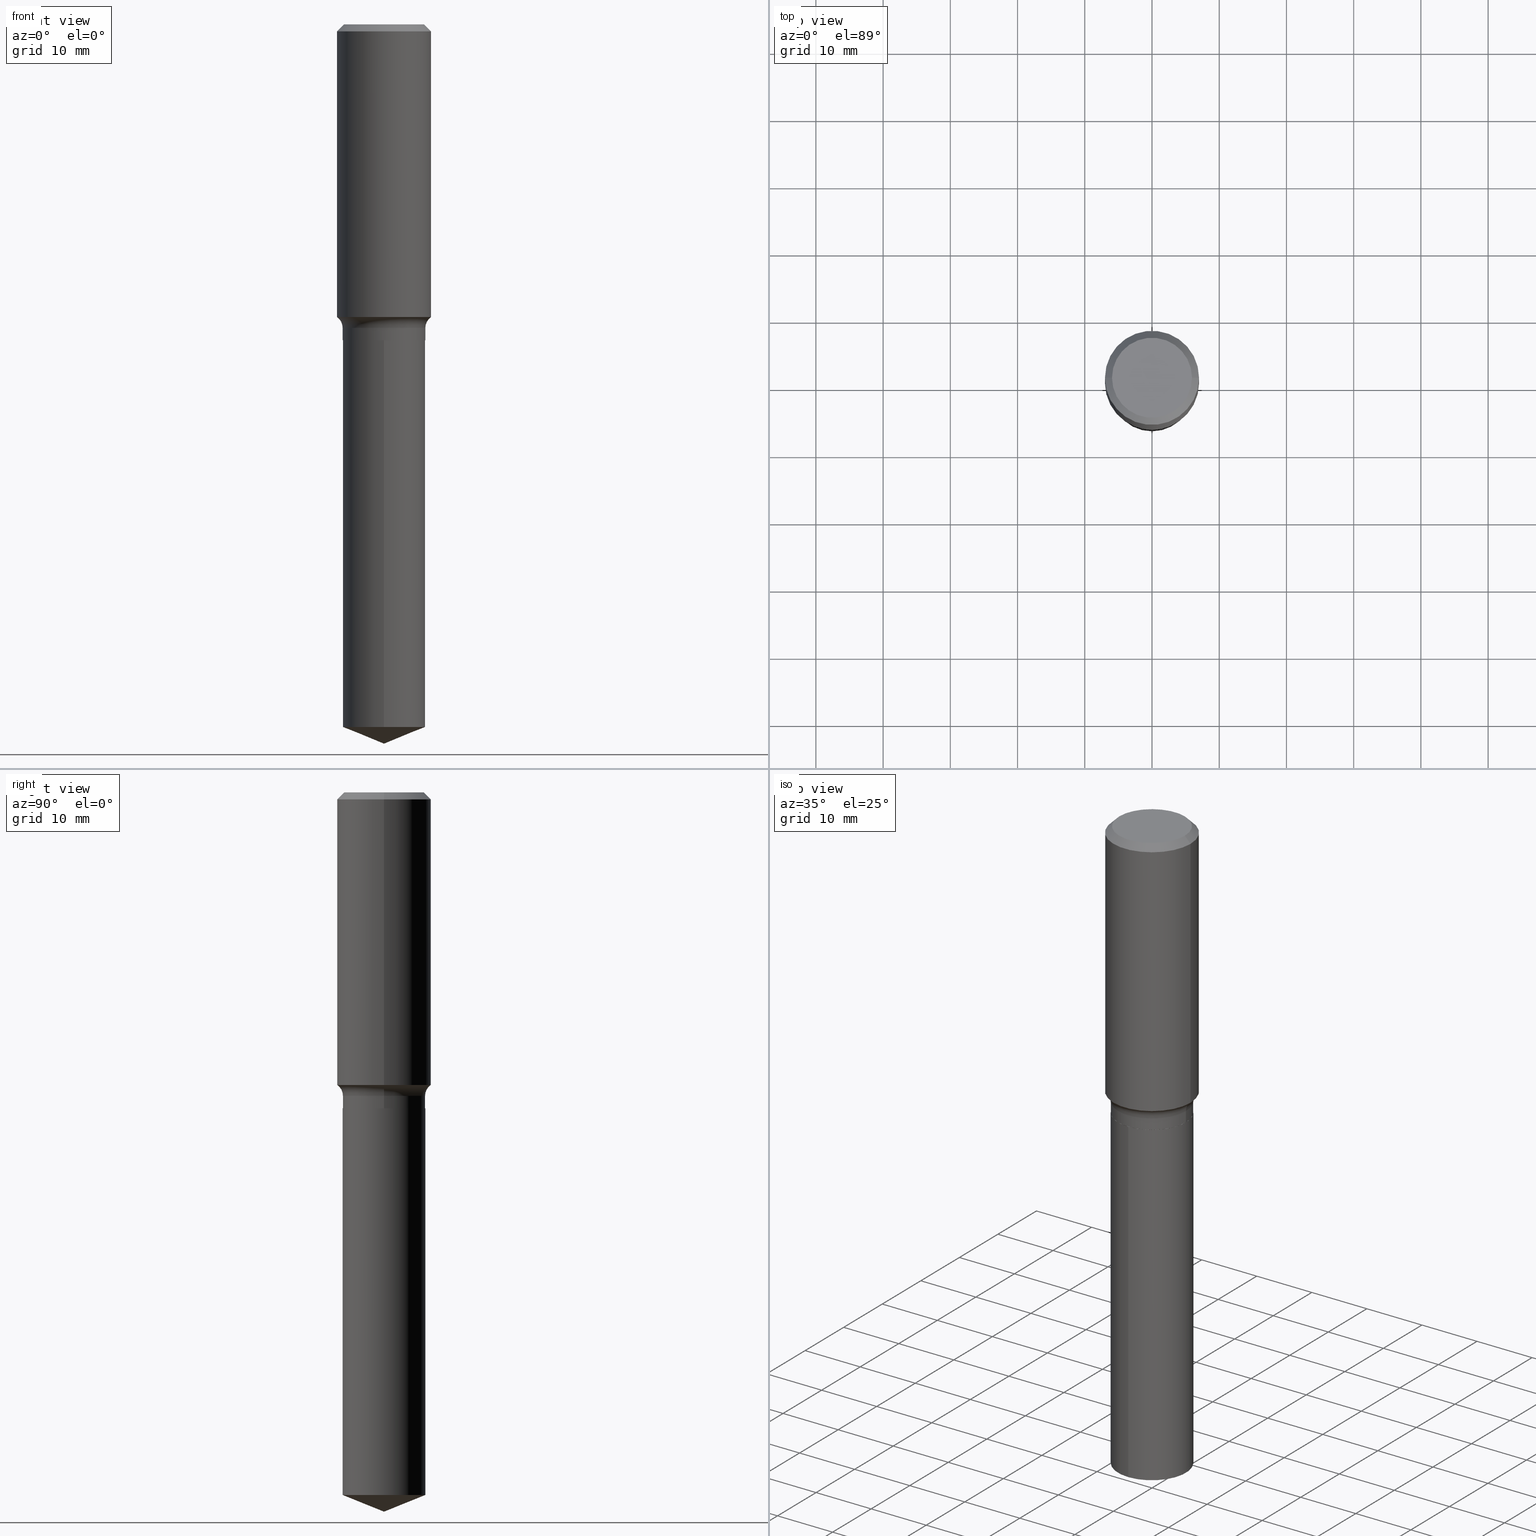
[diagram: canonical four-view strip — front | top / right | iso, engineering-drawing reading convention]
A machine part, canonical four-view strip (front | top / right | iso — engineering-drawing reading convention). The complete STEP part file that produces these views, byte-faithful:
ISO-10303-21;
HEADER;
FILE_DESCRIPTION (( 'STEP AP203' ),
    '1' );
FILE_NAME ('56827.STEP',
    '2024-04-19T14:11:59',
    ( '' ),
    ( '' ),
    'SwSTEP 2.0',
    'SolidWorks 2023',
    '' );
FILE_SCHEMA (( 'CONFIG_CONTROL_DESIGN' ));
ENDSEC;

DATA;
#1 = CC_DESIGN_PERSON_AND_ORGANIZATION_ASSIGNMENT ( #440, #118, ( #254 ) ) ;
#2 = EDGE_CURVE ( 'NONE', #32, #242, #47, .T. ) ;
#3 = TOROIDAL_SURFACE ( 'NONE', #399, 0.3201999999999999291, 0.07799999999999993050 ) ;
#4 = DIMENSIONAL_EXPONENTS ( 1.000000000000000000, 0.000000000000000000, 0.000000000000000000, 0.000000000000000000, 0.000000000000000000, 0.000000000000000000, 0.000000000000000000 ) ;
#5 = EDGE_CURVE ( 'NONE', #485, #172, #347, .T. ) ;
#6 = CARTESIAN_POINT ( 'NONE',  ( 0.2756000000000001782, -7.907887728136033318E-15, -1.713709063141723332 ) ) ;
#7 = ORIENTED_EDGE ( 'NONE', *, *, #42, .T. ) ;
#8 = CLOSED_SHELL ( 'NONE', ( #190, #16, #457, #430, #71, #266, #301, #244, #167, #152, #209, #368 ) ) ;
#9 = ORIENTED_EDGE ( 'NONE', *, *, #150, .T. ) ;
#10 = CIRCLE ( 'NONE', #345, 0.2756000000000001782 ) ;
#11 = CC_DESIGN_APPROVAL ( #339, ( #226 ) ) ;
#12 = APPROVAL_DATE_TIME ( #397, #477 ) ;
#13 = ORIENTED_EDGE ( 'NONE', *, *, #15, .T. ) ;
#14 = DIRECTION ( 'NONE',  ( -2.445479514057623274E-29, 3.491466004560290354E-15, 1.000000000000000000 ) ) ;
#15 = EDGE_CURVE ( 'NONE', #172, #242, #481, .T. ) ;
#16 = ADVANCED_FACE ( 'NONE', ( #241 ), #19, .T. ) ;
#17 = DIRECTION ( 'NONE',  ( -2.445468806185136597E-29, 3.491481338843145583E-15, 1.000000000000000000 ) ) ;
#18 = DIRECTION ( 'NONE',  ( 1.000000000000000000, -6.982962677686274599E-15, 0.000000000000000000 ) ) ;
#19 = CONICAL_SURFACE ( 'NONE', #272, 0.2756000000000000116, 0.7853981633974452814 ) ;
#20 = EDGE_LOOP ( 'NONE', ( #286, #284, #102, #194 ) ) ;
#21 = ORGANIZATION ( 'UNSPECIFIED', 'UNSPECIFIED', '' ) ;
#22 = LOCAL_TIME ( 10, 11, 59.00000000000000000, #200 ) ;
#23 = LENGTH_MEASURE_WITH_UNIT ( LENGTH_MEASURE( 0.02539999999999999897 ), #53 );
#24 = CARTESIAN_POINT ( 'NONE',  ( 4.525095478964978515E-29, -6.460637069395359943E-15, -1.850400000000000933 ) ) ;
#25 = ORIENTED_EDGE ( 'NONE', *, *, #229, .F. ) ;
#26 = EDGE_CURVE ( 'NONE', #99, #455, #280, .T. ) ;
#27 = DIRECTION ( 'NONE',  ( 6.588037525764804701E-15, 0.9271838545667907550, 0.3746065934159037991 ) ) ;
#28 = VERTEX_POINT ( 'NONE', #238 ) ;
#29 = CARTESIAN_POINT ( 'NONE',  ( -0.2756000000000000116, 1.780166675422558965E-15, -0.04134000000000025155 ) ) ;
#30 = DIRECTION ( 'NONE',  ( -2.445468806185136597E-29, 3.491481338843145583E-15, 1.000000000000000000 ) ) ;
#31 = APPROVAL_ROLE ( '' ) ;
#32 = VERTEX_POINT ( 'NONE', #6 ) ;
#33 = AXIS2_PLACEMENT_3D ( 'NONE', #316, #227, #410 ) ;
#34 = DIRECTION ( 'NONE',  ( -2.445468806185136877E-29, 3.491481338843145188E-15, 1.000000000000000000 ) ) ;
#35 = CARTESIAN_POINT ( 'NONE',  ( 0.000000000000000000, 0.000000000000000000, 0.000000000000000000 ) ) ;
#36 = FACE_OUTER_BOUND ( 'NONE', #20, .T. ) ;
#37 = FACE_OUTER_BOUND ( 'NONE', #203, .T. ) ;
#38 = CC_DESIGN_DATE_AND_TIME_ASSIGNMENT ( #472, #129, ( #226 ) ) ;
#39 = CIRCLE ( 'NONE', #56, 0.07799999999999995826 ) ;
#40 = AXIS2_PLACEMENT_3D ( 'NONE', #41, #454, #334 ) ;
#41 = CARTESIAN_POINT ( 'NONE',  ( -1.002970424325033577E-46, 1.431975951230896486E-32, 4.101342130344485961E-18 ) ) ;
#42 = EDGE_CURVE ( 'NONE', #206, #348, #432, .T. ) ;
#43 = AXIS2_PLACEMENT_3D ( 'NONE', #401, #484, #487 ) ;
#44 = AXIS2_PLACEMENT_3D ( 'NONE', #216, #30, #212 ) ;
#45 = ORIENTED_EDGE ( 'NONE', *, *, #352, .F. ) ;
#46 = DIRECTION ( 'NONE',  ( -2.445468806185136597E-29, 3.491481338843145583E-15, 1.000000000000000000 ) ) ;
#47 = LINE ( 'NONE', #464, #115 ) ;
#48 = ORIENTED_EDGE ( 'NONE', *, *, #448, .T. ) ;
#49 = EDGE_CURVE ( 'NONE', #348, #166, #314, .T. ) ;
#50 = CARTESIAN_POINT ( 'NONE',  ( -0.2756000000000001227, 1.958255779754836984E-15, -1.355658510874252567E-29 ) ) ;
#51 = CARTESIAN_POINT ( 'NONE',  ( 1.006250441776211636E-28, -1.436652012914726322E-14, -4.114744848102726671 ) ) ;
#52 = VERTEX_POINT ( 'NONE', #383 ) ;
#53 =( LENGTH_UNIT ( ) NAMED_UNIT ( * ) SI_UNIT ( $, .METRE. ) );
#54 = CARTESIAN_POINT ( 'NONE',  ( 0.2756000000000000116, -2.068842352518111732E-15, -0.04134000000000025155 ) ) ;
#55 = PERSON_AND_ORGANIZATION_ROLE ( 'creator' ) ;
#56 = AXIS2_PLACEMENT_3D ( 'NONE', #342, #84, #18 ) ;
#57 = EDGE_CURVE ( 'NONE', #242, #172, #148, .T. ) ;
#58 = TOROIDAL_SURFACE ( 'NONE', #149, 0.3201999999999999291, 0.07799999999999993050 ) ;
#59 = ORIENTED_EDGE ( 'NONE', *, *, #306, .T. ) ;
#60 = LINE ( 'NONE', #364, #252 ) ;
#61 = ORIENTED_EDGE ( 'NONE', *, *, #159, .T. ) ;
#62 = DIRECTION ( 'NONE',  ( -6.982962677686265922E-15, -1.000000000000000000, 3.383791899666717075E-15 ) ) ;
#63 = CARTESIAN_POINT ( 'NONE',  ( -0.3201999999999999291, -3.931648536157621988E-15, -1.777700000000000502 ) ) ;
#64 = COORDINATED_UNIVERSAL_TIME_OFFSET ( 5, 0, .BEHIND. ) ;
#65 = ORIENTED_EDGE ( 'NONE', *, *, #15, .F. ) ;
#66 = FACE_OUTER_BOUND ( 'NONE', #329, .T. ) ;
#67 = DIRECTION ( 'NONE',  ( -2.438088387897960049E-29, 3.491481338843145188E-15, 1.000000000000000000 ) ) ;
#68 = AXIS2_PLACEMENT_3D ( 'NONE', #408, #333, #439 ) ;
#69 = AXIS2_PLACEMENT_3D ( 'NONE', #367, #70, #395 ) ;
#70 = DIRECTION ( 'NONE',  ( -2.445468806185136597E-29, 3.491481338843145583E-15, 1.000000000000000000 ) ) ;
#71 = ADVANCED_FACE ( 'NONE', ( #156 ), #318, .T. ) ;
#72 = CARTESIAN_POINT ( 'NONE',  ( -0.2756000000000000116, -1.105604746601899798E-15, -0.04134000000000025155 ) ) ;
#73 = ADVANCED_BREP_SHAPE_REPRESENTATION ( '56827', ( #422, #96, #380 ), #265 ) ;
#74 = PRODUCT_DEFINITION ( 'UNKNOWN', '', #254, #108 ) ;
#75 = VECTOR ( 'NONE', #312, 39.37007874015748143 ) ;
#76 = VECTOR ( 'NONE', #27, 39.37007874015748143 ) ;
#77 = CARTESIAN_POINT ( 'NONE',  ( -1.002970424325033577E-46, 1.431975951230896486E-32, 4.101342130344485961E-18 ) ) ;
#78 = AXIS2_PLACEMENT_3D ( 'NONE', #177, #327, #297 ) ;
#79 = AXIS2_PLACEMENT_3D ( 'NONE', #35, #264, #289 ) ;
#80 = ORIENTED_EDGE ( 'NONE', *, *, #489, .F. ) ;
#81 = CARTESIAN_POINT ( 'NONE',  ( -5.014852121625167883E-47, 7.159879756154482429E-33, 2.050671065172242981E-18 ) ) ;
#82 = PERSON_AND_ORGANIZATION ( #195, #21 ) ;
#83 = CARTESIAN_POINT ( 'NONE',  ( 1.010956804476941697E-30, -1.443378385477765070E-16, -0.04134000000000025155 ) ) ;
#84 = DIRECTION ( 'NONE',  ( -6.982962677686266711E-15, -1.000000000000000000, 3.491481338843145583E-15 ) ) ;
#85 = CIRCLE ( 'NONE', #44, 0.2421999999999999431 ) ;
#86 = EDGE_LOOP ( 'NONE', ( #59, #446 ) ) ;
#87 = CARTESIAN_POINT ( 'NONE',  ( 4.523872744561886834E-29, -6.458891328725938439E-15, -1.849900000000000988 ) ) ;
#88 = ORIENTED_EDGE ( 'NONE', *, *, #2, .F. ) ;
#89 = EDGE_LOOP ( 'NONE', ( #126, #425, #9, #155 ) ) ;
#90 = ORIENTED_EDGE ( 'NONE', *, *, #379, .F. ) ;
#91 = APPLICATION_PROTOCOL_DEFINITION ( 'international standard', 'config_control_design', 1994, #154 ) ;
#92 = VERTEX_POINT ( 'NONE', #468 ) ;
#93 = CARTESIAN_POINT ( 'NONE',  ( -0.2421999999999999431, -4.611914346382738705E-15, -1.777700000000000502 ) ) ;
#94 = AXIS2_PLACEMENT_3D ( 'NONE', #63, #248, #183 ) ;
#95 = ORIENTED_EDGE ( 'NONE', *, *, #143, .F. ) ;
#96 = MANIFOLD_SOLID_BREP ( 'Body-Move/Copy2[2]', #8 ) ;
#97 = DIRECTION ( 'NONE',  ( -6.982962677686265922E-15, -1.000000000000000000, 3.383791899666717075E-15 ) ) ;
#98 = PLANE ( 'NONE',  #317 ) ;
#99 = VERTEX_POINT ( 'NONE', #459 ) ;
#100 = CARTESIAN_POINT ( 'NONE',  ( 1.010956804476941697E-30, -1.443378385477765070E-16, -0.04134000000000025155 ) ) ;
#101 = COORDINATED_UNIVERSAL_TIME_OFFSET ( 5, 0, .BEHIND. ) ;
#102 = ORIENTED_EDGE ( 'NONE', *, *, #143, .T. ) ;
#103 = CC_DESIGN_PERSON_AND_ORGANIZATION_ASSIGNMENT ( #82, #387, ( #226 ) ) ;
#104 = LINE ( 'NONE', #292, #116 ) ;
#105 = DIRECTION ( 'NONE',  ( 2.445468806185136597E-29, -3.491481338843145583E-15, -1.000000000000000000 ) ) ;
#106 = AXIS2_PLACEMENT_3D ( 'NONE', #24, #302, #373 ) ;
#107 = CONICAL_SURFACE ( 'NONE', #304, 97.44436430772969970, 1.186823891356149518 ) ;
#108 = DESIGN_CONTEXT ( 'detailed design', #154, 'design' ) ;
#109 = AXIS2_PLACEMENT_3D ( 'NONE', #77, #492, #151 ) ;
#110 = CARTESIAN_POINT ( 'NONE',  ( -8.597691383881878923E-28, 1.227511134527540087E-13, 35.15747874015747954 ) ) ;
#111 = DIRECTION ( 'NONE',  ( -2.445479514057623274E-29, 3.491466004560290354E-15, 1.000000000000000000 ) ) ;
#112 = CC_DESIGN_PERSON_AND_ORGANIZATION_ASSIGNMENT ( #132, #55, ( #74 ) ) ;
#113 = DIRECTION ( 'NONE',  ( 1.000000000000000000, -6.982962677686268288E-15, 0.000000000000000000 ) ) ;
#114 = EDGE_LOOP ( 'NONE', ( #61, #7, #90, #45 ) ) ;
#115 = VECTOR ( 'NONE', #236, 39.37007874015748143 ) ;
#116 = VECTOR ( 'NONE', #444, 39.37007874015748143 ) ;
#117 = DIRECTION ( 'NONE',  ( -2.445468806185136877E-29, 3.491481338843145188E-15, 1.000000000000000000 ) ) ;
#118 = PERSON_AND_ORGANIZATION_ROLE ( 'design_supplier' ) ;
#119 = DIRECTION ( 'NONE',  ( 1.000000000000000000, -6.982962677686267499E-15, 0.000000000000000000 ) ) ;
#120 = EDGE_CURVE ( 'NONE', #455, #99, #414, .T. ) ;
#121 = ORIENTED_EDGE ( 'NONE', *, *, #5, .T. ) ;
#122 = EDGE_LOOP ( 'NONE', ( #222, #246 ) ) ;
#123 = DIRECTION ( 'NONE',  ( 0.7071067811865715536, -2.468850131082509496E-15, 0.7071067811865232589 ) ) ;
#124 = CARTESIAN_POINT ( 'NONE',  ( -0.2417000000000000259, -4.743255277063196820E-15, -1.850400000000000933 ) ) ;
#125 = AXIS2_PLACEMENT_3D ( 'NONE', #411, #445, #233 ) ;
#126 = ORIENTED_EDGE ( 'NONE', *, *, #208, .F. ) ;
#127 = CYLINDRICAL_SURFACE ( 'NONE', #69, 0.2756000000000001227 ) ;
#128 = PLANE ( 'NONE',  #137 ) ;
#129 = DATE_TIME_ROLE ( 'classification_date' ) ;
#130 = EDGE_LOOP ( 'NONE', ( #403, #48, #466 ) ) ;
#131 = CYLINDRICAL_SURFACE ( 'NONE', #79, 0.2756000000000001227 ) ;
#132 = PERSON_AND_ORGANIZATION ( #195, #21 ) ;
#133 = ORIENTED_EDGE ( 'NONE', *, *, #120, .T. ) ;
#134 = CARTESIAN_POINT ( 'NONE',  ( -0.2342600000000000238, 1.707997756148671759E-15, 4.101342130332794026E-18 ) ) ;
#135 = FACE_OUTER_BOUND ( 'NONE', #313, .T. ) ;
#136 = CALENDAR_DATE ( 2024, 19, 4 ) ;
#137 = AXIS2_PLACEMENT_3D ( 'NONE', #81, #162, #311 ) ;
#138 = CONICAL_SURFACE ( 'NONE', #337, 0.2417000000000000259, 0.7853981633974824739 ) ;
#139 = ORIENTED_EDGE ( 'NONE', *, *, #49, .T. ) ;
#140 = CC_DESIGN_APPROVAL ( #176, ( #254 ) ) ;
#141 = CARTESIAN_POINT ( 'NONE',  ( 1.720934506011007605E-15, 0.2421999999999935593, -1.850400000000001377 ) ) ;
#142 = CYLINDRICAL_SURFACE ( 'NONE', #78, 0.2422000000000000264 ) ;
#143 = EDGE_CURVE ( 'NONE', #166, #323, #343, .T. ) ;
#144 = VERTEX_POINT ( 'NONE', #420 ) ;
#145 = DIRECTION ( 'NONE',  ( 0.000000000000000000, 0.000000000000000000, 1.000000000000000000 ) ) ;
#146 = LINE ( 'NONE', #435, #76 ) ;
#147 = CARTESIAN_POINT ( 'NONE',  ( -0.2417000000000000259, -4.740606049889086408E-15, -1.850400000000000933 ) ) ;
#148 = CIRCLE ( 'NONE', #375, 0.2756000000000000116 ) ;
#149 = AXIS2_PLACEMENT_3D ( 'NONE', #173, #257, #404 ) ;
#150 = EDGE_CURVE ( 'NONE', #32, #323, #39, .T. ) ;
#151 = DIRECTION ( 'NONE',  ( 1.000000000000000000, -6.982962677686267499E-15, 4.876157962347795834E-29 ) ) ;
#152 = ADVANCED_FACE ( 'NONE', ( #165 ), #128, .F. ) ;
#153 = FACE_OUTER_BOUND ( 'NONE', #130, .T. ) ;
#154 = APPLICATION_CONTEXT ( 'configuration controlled 3d designs of mechanical parts and assemblies' ) ;
#155 = ORIENTED_EDGE ( 'NONE', *, *, #229, .T. ) ;
#156 = FACE_OUTER_BOUND ( 'NONE', #428, .T. ) ;
#157 = ORIENTED_EDGE ( 'NONE', *, *, #243, .F. ) ;
#158 = APPROVAL_ROLE ( '' ) ;
#159 = EDGE_CURVE ( 'NONE', #390, #206, #469, .T. ) ;
#160 = CARTESIAN_POINT ( 'NONE',  ( 0.2417000000000000259, -8.148419148592130335E-15, -1.850400000000000933 ) ) ;
#161 = CIRCLE ( 'NONE', #125, 0.2756000000000001782 ) ;
#162 = DIRECTION ( 'NONE',  ( 2.438088387897960049E-29, -3.491481338843145188E-15, -1.000000000000000000 ) ) ;
#163 = ORIENTED_EDGE ( 'NONE', *, *, #415, .F. ) ;
#164 = CARTESIAN_POINT ( 'NONE',  ( 1.010956804476941697E-30, -1.443378385477765070E-16, -0.04134000000000025155 ) ) ;
#165 = FACE_OUTER_BOUND ( 'NONE', #86, .T. ) ;
#166 = VERTEX_POINT ( 'NONE', #93 ) ;
#167 = ADVANCED_FACE ( 'NONE', ( #253 ), #308, .T. ) ;
#168 = EDGE_CURVE ( 'NONE', #28, #52, #452, .T. ) ;
#169 = DIRECTION ( 'NONE',  ( -2.445479514057623274E-29, 3.491466004560290354E-15, 1.000000000000000000 ) ) ;
#170 = DIRECTION ( 'NONE',  ( 1.000000000000000000, -6.982962677686265922E-15, 4.876176775795935793E-29 ) ) ;
#171 = APPROVAL_STATUS ( 'not_yet_approved' ) ;
#172 = VERTEX_POINT ( 'NONE', #72 ) ;
#173 = CARTESIAN_POINT ( 'NONE',  ( 4.347309896755318363E-29, -6.206806376061462280E-15, -1.777700000000000502 ) ) ;
#174 = FACE_OUTER_BOUND ( 'NONE', #234, .T. ) ;
#175 = ORIENTED_EDGE ( 'NONE', *, *, #57, .T. ) ;
#176 = APPROVAL ( #171, 'UNSPECIFIED' ) ;
#177 = CARTESIAN_POINT ( 'NONE',  ( 4.525095478964977954E-29, -6.460637069395358365E-15, -1.850400000000000489 ) ) ;
#178 = COORDINATED_UNIVERSAL_TIME_OFFSET ( 5, 0, .BEHIND. ) ;
#179 = AXIS2_PLACEMENT_3D ( 'NONE', #100, #105, #396 ) ;
#180 = CIRCLE ( 'NONE', #354, 0.2421999999999999431 ) ;
#181 = ORIENTED_EDGE ( 'NONE', *, *, #412, .F. ) ;
#182 =( NAMED_UNIT ( * ) PLANE_ANGLE_UNIT ( ) SI_UNIT ( $, .RADIAN. ) );
#183 = DIRECTION ( 'NONE',  ( -1.000000000000000000, 7.105427357601001859E-15, 0.000000000000000000 ) ) ;
#184 = FACE_OUTER_BOUND ( 'NONE', #394, .T. ) ;
#185 = MECHANICAL_CONTEXT ( 'NONE', #377, 'mechanical' ) ;
#186 = CLOSED_SHELL ( 'NONE', ( #441, #232, #279, #267, #197 ) ) ;
#187 = CC_DESIGN_APPROVAL ( #477, ( #74 ) ) ;
#188 = CARTESIAN_POINT ( 'NONE',  ( -0.2421999999999999431, -4.611914346382738705E-15, -1.849900000000000988 ) ) ;
#189 = DIRECTION ( 'NONE',  ( -2.445468806185136597E-29, 3.491481338843145583E-15, 1.000000000000000000 ) ) ;
#190 = ADVANCED_FACE ( 'NONE', ( #224 ), #315, .T. ) ;
#191 = VECTOR ( 'NONE', #275, 39.37007874015748854 ) ;
#192 = VECTOR ( 'NONE', #34, 39.37007874015748143 ) ;
#193 = APPROVAL_PERSON_ORGANIZATION ( #433, #339, #332 ) ;
#194 = ORIENTED_EDGE ( 'NONE', *, *, #150, .F. ) ;
#195 = PERSON ( 'UNSPECIFIED', 'UNSPECIFIED', 'UNSPECIFIED', ('UNSPECIFIED'), ('UNSPECIFIED'), ('UNSPECIFIED') ) ;
#196 = CARTESIAN_POINT ( 'NONE',  ( 0.000000000000000000, 0.000000000000000000, 0.000000000000000000 ) ) ;
#197 = ADVANCED_FACE ( 'NONE', ( #300 ), #228, .F. ) ;
#198 = EDGE_CURVE ( 'NONE', #92, #242, #60, .T. ) ;
#199 = DIRECTION ( 'NONE',  ( 1.000000000000000000, -6.982962677686268288E-15, 0.000000000000000000 ) ) ;
#200 = COORDINATED_UNIVERSAL_TIME_OFFSET ( 5, 0, .BEHIND. ) ;
#201 = AXIS2_PLACEMENT_3D ( 'NONE', #220, #356, #294 ) ;
#202 = AXIS2_PLACEMENT_3D ( 'NONE', #370, #360, #447 ) ;
#203 = EDGE_LOOP ( 'NONE', ( #480, #340 ) ) ;
#204 = ORIENTED_EDGE ( 'NONE', *, *, #346, .F. ) ;
#205 = DIRECTION ( 'NONE',  ( 2.445468806185136597E-29, -3.491481338843145583E-15, -1.000000000000000000 ) ) ;
#206 = VERTEX_POINT ( 'NONE', #147 ) ;
#207 = DIRECTION ( 'NONE',  ( -6.982962677686265922E-15, -1.000000000000000000, 4.511722532888956363E-15 ) ) ;
#208 = EDGE_CURVE ( 'NONE', #485, #166, #310, .T. ) ;
#209 = ADVANCED_FACE ( 'NONE', ( #37 ), #98, .F. ) ;
#210 = ORIENTED_EDGE ( 'NONE', *, *, #243, .T. ) ;
#211 = APPROVAL_PERSON_ORGANIZATION ( #402, #477, #31 ) ;
#212 = DIRECTION ( 'NONE',  ( 1.000000000000000000, -6.982962677686268288E-15, 0.000000000000000000 ) ) ;
#213 = PERSON_AND_ORGANIZATION ( #195, #21 ) ;
#214 = EDGE_LOOP ( 'NONE', ( #278, #385, #429, #65 ) ) ;
#215 = CARTESIAN_POINT ( 'NONE',  ( 1.720934506011063023E-15, 0.2421999999999855935, -4.114744848102727559 ) ) ;
#216 = CARTESIAN_POINT ( 'NONE',  ( 4.523872744561886834E-29, -6.458891328725938439E-15, -1.849900000000000988 ) ) ;
#217 = ORIENTED_EDGE ( 'NONE', *, *, #26, .F. ) ;
#218 = PRODUCT_RELATED_PRODUCT_CATEGORY ( 'detail', '', ( #277 ) ) ;
#219 = DIRECTION ( 'NONE',  ( -6.474490251793189673E-15, -0.9271838545667880904, 0.3746065934159102384 ) ) ;
#220 = CARTESIAN_POINT ( 'NONE',  ( 4.525095478964978515E-29, -6.460637069395359943E-15, -1.850400000000000933 ) ) ;
#221 = PERSON_AND_ORGANIZATION ( #195, #21 ) ;
#222 = ORIENTED_EDGE ( 'NONE', *, *, #168, .T. ) ;
#223 = LINE ( 'NONE', #431, #270 ) ;
#224 = FACE_OUTER_BOUND ( 'NONE', #114, .T. ) ;
#225 = VECTOR ( 'NONE', #470, 39.37007874015748143 ) ;
#226 = SECURITY_CLASSIFICATION ( '', '', #237 ) ;
#227 = DIRECTION ( 'NONE',  ( -2.445468806185136597E-29, 3.491481338843145583E-15, 1.000000000000000000 ) ) ;
#228 = PLANE ( 'NONE',  #43 ) ;
#229 = EDGE_CURVE ( 'NONE', #323, #166, #326, .T. ) ;
#230 = CARTESIAN_POINT ( 'NONE',  ( 4.347309896755318363E-29, -6.206806376061462280E-15, -1.777700000000000502 ) ) ;
#231 = SHAPE_DEFINITION_REPRESENTATION ( #405, #73 ) ;
#232 = ADVANCED_FACE ( 'NONE', ( #184 ), #355, .T. ) ;
#233 = DIRECTION ( 'NONE',  ( 1.000000000000000000, -6.982962677686265922E-15, 0.000000000000000000 ) ) ;
#234 = EDGE_LOOP ( 'NONE', ( #296, #210, #418, #95 ) ) ;
#235 = VECTOR ( 'NONE', #117, 39.37007874015748143 ) ;
#236 = DIRECTION ( 'NONE',  ( -2.445468806185136877E-29, 3.491481338843145188E-15, 1.000000000000000000 ) ) ;
#237 = SECURITY_CLASSIFICATION_LEVEL ( 'unclassified' ) ;
#238 = CARTESIAN_POINT ( 'NONE',  ( -1.691273560535568632E-15, -0.2422000000000064657, -1.850400000000000045 ) ) ;
#239 = ORIENTED_EDGE ( 'NONE', *, *, #42, .F. ) ;
#240 = CIRCLE ( 'NONE', #482, 0.2422000000000000264 ) ;
#241 = FACE_OUTER_BOUND ( 'NONE', #407, .T. ) ;
#242 = VERTEX_POINT ( 'NONE', #54 ) ;
#243 = EDGE_CURVE ( 'NONE', #348, #392, #85, .T. ) ;
#244 = ADVANCED_FACE ( 'NONE', ( #474 ), #131, .T. ) ;
#245 = CARTESIAN_POINT ( 'NONE',  ( -0.2421999999999999431, 1.720934506010962246E-15, -1.191366078859737785E-29 ) ) ;
#246 = ORIENTED_EDGE ( 'NONE', *, *, #421, .T. ) ;
#247 = FACE_OUTER_BOUND ( 'NONE', #321, .T. ) ;
#248 = DIRECTION ( 'NONE',  ( 7.105427357601001859E-15, 1.000000000000000000, -3.491481338843145583E-15 ) ) ;
#249 = ORIENTED_EDGE ( 'NONE', *, *, #379, .T. ) ;
#250 =( CONVERSION_BASED_UNIT ( 'INCH', #23 ) LENGTH_UNIT ( ) NAMED_UNIT ( #4 ) );
#251 = AXIS2_PLACEMENT_3D ( 'NONE', #465, #276, #199 ) ;
#252 = VECTOR ( 'NONE', #488, 39.37007874015748143 ) ;
#253 = FACE_OUTER_BOUND ( 'NONE', #473, .T. ) ;
#254 = PRODUCT_DEFINITION_FORMATION_WITH_SPECIFIED_SOURCE ( 'ANY', '', #277, .NOT_KNOWN. ) ;
#255 = EDGE_CURVE ( 'NONE', #144, #455, #146, .T. ) ;
#256 = ORIENTED_EDGE ( 'NONE', *, *, #453, .T. ) ;
#257 = DIRECTION ( 'NONE',  ( -2.445468806185136597E-29, 3.491481338843145583E-15, 1.000000000000000000 ) ) ;
#258 = CARTESIAN_POINT ( 'NONE',  ( 0.000000000000000000, 0.000000000000000000, 0.000000000000000000 ) ) ;
#259 = CALENDAR_DATE ( 2024, 19, 4 ) ;
#260 = ORIENTED_EDGE ( 'NONE', *, *, #269, .T. ) ;
#261 = CARTESIAN_POINT ( 'NONE',  ( 4.525095478964978515E-29, -6.460637069395359943E-15, -1.850400000000000933 ) ) ;
#262 = CARTESIAN_POINT ( 'NONE',  ( 4.525095478964978515E-29, -6.460637069395359943E-15, -1.850400000000000933 ) ) ;
#263 = CYLINDRICAL_SURFACE ( 'NONE', #293, 0.2422000000000000264 ) ;
#264 = DIRECTION ( 'NONE',  ( -2.445468806185136597E-29, 3.491481338843145583E-15, 1.000000000000000000 ) ) ;
#265 =( GEOMETRIC_REPRESENTATION_CONTEXT ( 3 ) GLOBAL_UNCERTAINTY_ASSIGNED_CONTEXT ( ( #461 ) ) GLOBAL_UNIT_ASSIGNED_CONTEXT ( ( #250, #182, #287 ) ) REPRESENTATION_CONTEXT ( 'NONE', 'WORKASPACE' ) );
#266 = ADVANCED_FACE ( 'NONE', ( #174 ), #322, .T. ) ;
#267 = ADVANCED_FACE ( 'NONE', ( #135 ), #142, .T. ) ;
#268 = CARTESIAN_POINT ( 'NONE',  ( 0.2421999999999999431, -7.898079936597074890E-15, -1.777700000000000502 ) ) ;
#269 = EDGE_CURVE ( 'NONE', #32, #485, #161, .T. ) ;
#270 = VECTOR ( 'NONE', #219, 39.37007874015748143 ) ;
#271 = CC_DESIGN_DATE_AND_TIME_ASSIGNMENT ( #274, #479, ( #74 ) ) ;
#272 = AXIS2_PLACEMENT_3D ( 'NONE', #83, #205, #349 ) ;
#273 = CARTESIAN_POINT ( 'NONE',  ( 1.006250441776211636E-28, -1.436652012914726322E-14, -4.114744848102726671 ) ) ;
#274 = DATE_AND_TIME ( #259, #460 ) ;
#275 = DIRECTION ( 'NONE',  ( -0.7071067811865715536, 7.493145998870439357E-15, 0.7071067811865232589 ) ) ;
#276 = DIRECTION ( 'NONE',  ( -2.445468806185136597E-29, 3.491481338843145583E-15, 1.000000000000000000 ) ) ;
#277 = PRODUCT ( '56827', '56827', '', ( #185 ) ) ;
#278 = ORIENTED_EDGE ( 'NONE', *, *, #5, .F. ) ;
#279 = ADVANCED_FACE ( 'NONE', ( #153 ), #107, .T. ) ;
#280 = CIRCLE ( 'NONE', #325, 0.2422000000000000264 ) ;
#281 = FACE_OUTER_BOUND ( 'NONE', #443, .T. ) ;
#282 = DIRECTION ( 'NONE',  ( 1.000000000000000000, -6.982962677686266711E-15, 4.876176775795935232E-29 ) ) ;
#283 = LINE ( 'NONE', #483, #192 ) ;
#284 = ORIENTED_EDGE ( 'NONE', *, *, #208, .T. ) ;
#285 = COORDINATED_UNIVERSAL_TIME_OFFSET ( 5, 0, .BEHIND. ) ;
#286 = ORIENTED_EDGE ( 'NONE', *, *, #288, .F. ) ;
#287 =( NAMED_UNIT ( * ) SI_UNIT ( $, .STERADIAN. ) SOLID_ANGLE_UNIT ( ) );
#288 = EDGE_CURVE ( 'NONE', #485, #32, #10, .T. ) ;
#289 = DIRECTION ( 'NONE',  ( 1.000000000000000000, -6.982962677686267499E-15, 4.876176775795935793E-29 ) ) ;
#290 = PERSON_AND_ORGANIZATION ( #195, #21 ) ;
#291 = ORIENTED_EDGE ( 'NONE', *, *, #448, .F. ) ;
#292 = CARTESIAN_POINT ( 'NONE',  ( -1.691273560535568632E-15, -0.2422000000000064657, -1.850399999999999823 ) ) ;
#293 = AXIS2_PLACEMENT_3D ( 'NONE', #299, #169, #62 ) ;
#294 = DIRECTION ( 'NONE',  ( 1.000000000000000000, -6.982962677686267499E-15, 0.000000000000000000 ) ) ;
#295 = PERSON_AND_ORGANIZATION_ROLE ( 'creator' ) ;
#296 = ORIENTED_EDGE ( 'NONE', *, *, #49, .F. ) ;
#297 = DIRECTION ( 'NONE',  ( -6.982962677686265922E-15, -1.000000000000000000, 3.383791899666717075E-15 ) ) ;
#298 = ORIENTED_EDGE ( 'NONE', *, *, #255, .T. ) ;
#299 = CARTESIAN_POINT ( 'NONE',  ( 4.525095478964977954E-29, -6.460637069395358365E-15, -1.850400000000000489 ) ) ;
#300 = FACE_OUTER_BOUND ( 'NONE', #122, .T. ) ;
#301 = ADVANCED_FACE ( 'NONE', ( #336 ), #3, .F. ) ;
#302 = DIRECTION ( 'NONE',  ( -2.445468806185136597E-29, 3.491481338843145583E-15, 1.000000000000000000 ) ) ;
#303 = AXIS2_PLACEMENT_3D ( 'NONE', #258, #478, #406 ) ;
#304 = AXIS2_PLACEMENT_3D ( 'NONE', #110, #111, #378 ) ;
#305 = DIRECTION ( 'NONE',  ( 1.000000000000000000, -6.982962677686267499E-15, 4.883557194083113462E-29 ) ) ;
#306 = EDGE_CURVE ( 'NONE', #384, #92, #416, .T. ) ;
#307 = ORIENTED_EDGE ( 'NONE', *, *, #306, .F. ) ;
#308 = CONICAL_SURFACE ( 'NONE', #179, 0.2756000000000000116, 0.7853981633974452814 ) ;
#309 = APPROVAL_STATUS ( 'not_yet_approved' ) ;
#310 = CIRCLE ( 'NONE', #94, 0.07799999999999995826 ) ;
#311 = DIRECTION ( 'NONE',  ( -1.000000000000000000, 6.982962677686265922E-15, -4.876176775795935793E-29 ) ) ;
#312 = DIRECTION ( 'NONE',  ( -2.445468806185136877E-29, 3.491481338843145188E-15, 1.000000000000000000 ) ) ;
#313 = EDGE_LOOP ( 'NONE', ( #163, #133, #353, #436 ) ) ;
#314 = LINE ( 'NONE', #245, #75 ) ;
#315 = CONICAL_SURFACE ( 'NONE', #106, 0.2417000000000000259, 0.7853981633974824739 ) ;
#316 = CARTESIAN_POINT ( 'NONE',  ( 4.525095478964978515E-29, -6.460637069395359943E-15, -1.850400000000000933 ) ) ;
#317 = AXIS2_PLACEMENT_3D ( 'NONE', #262, #67, #170 ) ;
#318 = CYLINDRICAL_SURFACE ( 'NONE', #458, 0.2421999999999999431 ) ;
#319 = ORIENTED_EDGE ( 'NONE', *, *, #352, .T. ) ;
#320 = DIRECTION ( 'NONE',  ( -2.445479514057623274E-29, 3.491466004560290354E-15, 1.000000000000000000 ) ) ;
#321 = EDGE_LOOP ( 'NONE', ( #351, #434, #381, #181 ) ) ;
#322 = CYLINDRICAL_SURFACE ( 'NONE', #303, 0.2421999999999999431 ) ;
#323 = VERTEX_POINT ( 'NONE', #268 ) ;
#324 = CARTESIAN_POINT ( 'NONE',  ( 0.2421999999999999431, -8.150164889261552628E-15, -1.849900000000000988 ) ) ;
#325 = AXIS2_PLACEMENT_3D ( 'NONE', #51, #14, #207 ) ;
#326 = CIRCLE ( 'NONE', #202, 0.2421999999999999431 ) ;
#327 = DIRECTION ( 'NONE',  ( -2.445479514057623274E-29, 3.491466004560290354E-15, 1.000000000000000000 ) ) ;
#328 = CC_DESIGN_SECURITY_CLASSIFICATION ( #226, ( #254 ) ) ;
#329 = EDGE_LOOP ( 'NONE', ( #260, #121, #475, #88 ) ) ;
#330 = CARTESIAN_POINT ( 'NONE',  ( 0.000000000000000000, 0.000000000000000000, 0.000000000000000000 ) ) ;
#331 = DIRECTION ( 'NONE',  ( -6.982962677686265922E-15, -1.000000000000000000, 3.498761904101781804E-15 ) ) ;
#332 = APPROVAL_ROLE ( '' ) ;
#333 = DIRECTION ( 'NONE',  ( -2.445479514057623274E-29, 3.491466004560290354E-15, 1.000000000000000000 ) ) ;
#334 = DIRECTION ( 'NONE',  ( 1.000000000000000000, -6.982962677686267499E-15, 4.876157962347795834E-29 ) ) ;
#335 = AXIS2_PLACEMENT_3D ( 'NONE', #449, #320, #331 ) ;
#336 = FACE_OUTER_BOUND ( 'NONE', #89, .T. ) ;
#337 = AXIS2_PLACEMENT_3D ( 'NONE', #463, #382, #467 ) ;
#338 = DIRECTION ( 'NONE',  ( 1.000000000000000000, 0.000000000000000000, 0.000000000000000000 ) ) ;
#339 = APPROVAL ( #357, 'UNSPECIFIED' ) ;
#340 = ORIENTED_EDGE ( 'NONE', *, *, #442, .F. ) ;
#341 = DIRECTION ( 'NONE',  ( 1.000000000000000000, -6.982962677686267499E-15, 0.000000000000000000 ) ) ;
#342 = CARTESIAN_POINT ( 'NONE',  ( 0.3201999999999999291, -8.442751025456604514E-15, -1.777700000000000502 ) ) ;
#343 = CIRCLE ( 'NONE', #251, 0.2421999999999999431 ) ;
#344 = CALENDAR_DATE ( 2024, 19, 4 ) ;
#345 = AXIS2_PLACEMENT_3D ( 'NONE', #376, #189, #451 ) ;
#346 = EDGE_CURVE ( 'NONE', #92, #384, #437, .T. ) ;
#347 = LINE ( 'NONE', #50, #235 ) ;
#348 = VERTEX_POINT ( 'NONE', #188 ) ;
#349 = DIRECTION ( 'NONE',  ( -1.000000000000000000, 6.982962677686267499E-15, 0.000000000000000000 ) ) ;
#350 = LINE ( 'NONE', #160, #369 ) ;
#351 = ORIENTED_EDGE ( 'NONE', *, *, #26, .T. ) ;
#352 = EDGE_CURVE ( 'NONE', #390, #392, #350, .T. ) ;
#353 = ORIENTED_EDGE ( 'NONE', *, *, #412, .T. ) ;
#354 = AXIS2_PLACEMENT_3D ( 'NONE', #87, #17, #113 ) ;
#355 = CONICAL_SURFACE ( 'NONE', #335, 97.44436430772969970, 1.186823891356149518 ) ;
#356 = DIRECTION ( 'NONE',  ( -2.445468806185136597E-29, 3.491481338843145583E-15, 1.000000000000000000 ) ) ;
#357 = APPROVAL_STATUS ( 'not_yet_approved' ) ;
#358 = ORIENTED_EDGE ( 'NONE', *, *, #442, .T. ) ;
#359 = CARTESIAN_POINT ( 'NONE',  ( -0.2756000000000001782, -4.025127434410860197E-15, -1.713709063141723332 ) ) ;
#360 = DIRECTION ( 'NONE',  ( -2.445468806185136597E-29, 3.491481338843145583E-15, 1.000000000000000000 ) ) ;
#361 = CALENDAR_DATE ( 2024, 19, 4 ) ;
#362 = ORIENTED_EDGE ( 'NONE', *, *, #198, .F. ) ;
#363 = LINE ( 'NONE', #29, #225 ) ;
#364 = CARTESIAN_POINT ( 'NONE',  ( 0.2756000000000000116, -2.035091086733610886E-15, -0.04134000000000025155 ) ) ;
#365 = DATE_AND_TIME ( #136, #427 ) ;
#366 = ORIENTED_EDGE ( 'NONE', *, *, #198, .T. ) ;
#367 = CARTESIAN_POINT ( 'NONE',  ( 0.000000000000000000, 0.000000000000000000, 0.000000000000000000 ) ) ;
#368 = ADVANCED_FACE ( 'NONE', ( #281 ), #138, .T. ) ;
#369 = VECTOR ( 'NONE', #123, 39.37007874015748854 ) ;
#370 = CARTESIAN_POINT ( 'NONE',  ( 4.347309896755318363E-29, -6.206806376061462280E-15, -1.777700000000000502 ) ) ;
#371 = LOCAL_TIME ( 10, 11, 59.00000000000000000, #101 ) ;
#372 = CARTESIAN_POINT ( 'NONE',  ( 0.2417000000000000259, -8.148419148592130335E-15, -1.850400000000000933 ) ) ;
#373 = DIRECTION ( 'NONE',  ( 1.000000000000000000, -6.982962677686267499E-15, 0.000000000000000000 ) ) ;
#374 = DIRECTION ( 'NONE',  ( -2.445468806185136597E-29, 3.491481338843145583E-15, 1.000000000000000000 ) ) ;
#375 = AXIS2_PLACEMENT_3D ( 'NONE', #164, #46, #119 ) ;
#376 = CARTESIAN_POINT ( 'NONE',  ( 4.190822056789839222E-29, -5.983383214165697575E-15, -1.713709063141723332 ) ) ;
#377 = APPLICATION_CONTEXT ( 'configuration controlled 3d designs of mechanical parts and assemblies' ) ;
#378 = DIRECTION ( 'NONE',  ( -6.982962677686265922E-15, -1.000000000000000000, 3.498761904101781804E-15 ) ) ;
#379 = EDGE_CURVE ( 'NONE', #392, #348, #180, .T. ) ;
#380 = AXIS2_PLACEMENT_3D ( 'NONE', #330, #145, #338 ) ;
#381 = ORIENTED_EDGE ( 'NONE', *, *, #168, .F. ) ;
#382 = DIRECTION ( 'NONE',  ( -2.445468806185136597E-29, 3.491481338843145583E-15, 1.000000000000000000 ) ) ;
#383 = CARTESIAN_POINT ( 'NONE',  ( 1.720934506011064009E-15, 0.2421999999999935871, -1.850400000000001599 ) ) ;
#384 = VERTEX_POINT ( 'NONE', #134 ) ;
#385 = ORIENTED_EDGE ( 'NONE', *, *, #288, .T. ) ;
#386 = CC_DESIGN_PERSON_AND_ORGANIZATION_ASSIGNMENT ( #290, #295, ( #254 ) ) ;
#387 = PERSON_AND_ORGANIZATION_ROLE ( 'classification_officer' ) ;
#388 = DIRECTION ( 'NONE',  ( -2.445468806185136597E-29, 3.491481338843145583E-15, 1.000000000000000000 ) ) ;
#389 = AXIS2_PLACEMENT_3D ( 'NONE', #424, #423, #341 ) ;
#390 = VERTEX_POINT ( 'NONE', #372 ) ;
#391 = VECTOR ( 'NONE', #476, 39.37007874015748143 ) ;
#392 = VERTEX_POINT ( 'NONE', #324 ) ;
#393 = DIRECTION ( 'NONE',  ( -2.445479514057623274E-29, 3.491466004560290354E-15, 1.000000000000000000 ) ) ;
#394 = EDGE_LOOP ( 'NONE', ( #291, #298, #217 ) ) ;
#395 = DIRECTION ( 'NONE',  ( 1.000000000000000000, -6.982962677686267499E-15, 4.876176775795935793E-29 ) ) ;
#396 = DIRECTION ( 'NONE',  ( -1.000000000000000000, 6.982962677686267499E-15, 0.000000000000000000 ) ) ;
#397 = DATE_AND_TIME ( #361, #491 ) ;
#398 = ORIENTED_EDGE ( 'NONE', *, *, #453, .F. ) ;
#399 = AXIS2_PLACEMENT_3D ( 'NONE', #230, #374, #305 ) ;
#400 = DIRECTION ( 'NONE',  ( -2.445479514057623274E-29, 3.491466004560290354E-15, 1.000000000000000000 ) ) ;
#401 = CARTESIAN_POINT ( 'NONE',  ( 3.067665386824547976E-29, -8.547759913109790561E-15, -1.850400000000000489 ) ) ;
#402 = PERSON_AND_ORGANIZATION ( #195, #21 ) ;
#403 = ORIENTED_EDGE ( 'NONE', *, *, #255, .F. ) ;
#404 = DIRECTION ( 'NONE',  ( 1.000000000000000000, -6.982962677686267499E-15, 4.883557194083113462E-29 ) ) ;
#405 = PRODUCT_DEFINITION_SHAPE ( 'NONE', 'NONE',  #74 ) ;
#406 = DIRECTION ( 'NONE',  ( 1.000000000000000000, -6.982962677686266711E-15, 4.876176775795935232E-29 ) ) ;
#407 = EDGE_LOOP ( 'NONE', ( #204, #366, #175, #398 ) ) ;
#408 = CARTESIAN_POINT ( 'NONE',  ( 4.525095478964978515E-29, -6.460637069395359943E-15, -1.850400000000000933 ) ) ;
#409 = APPROVAL_DATE_TIME ( #413, #339 ) ;
#410 = DIRECTION ( 'NONE',  ( 1.000000000000000000, -6.982962677686267499E-15, 0.000000000000000000 ) ) ;
#411 = CARTESIAN_POINT ( 'NONE',  ( 4.190822056789839222E-29, -5.983383214165697575E-15, -1.713709063141723332 ) ) ;
#412 = EDGE_CURVE ( 'NONE', #99, #28, #104, .T. ) ;
#413 = DATE_AND_TIME ( #450, #371 ) ;
#414 = CIRCLE ( 'NONE', #490, 0.2422000000000000264 ) ;
#415 = EDGE_CURVE ( 'NONE', #455, #52, #438, .T. ) ;
#416 = CIRCLE ( 'NONE', #40, 0.2342600000000000238 ) ;
#417 = APPROVAL_PERSON_ORGANIZATION ( #213, #176, #158 ) ;
#418 = ORIENTED_EDGE ( 'NONE', *, *, #489, .T. ) ;
#419 = PERSON_AND_ORGANIZATION_ROLE ( 'design_owner' ) ;
#420 = CARTESIAN_POINT ( 'NONE',  ( 1.030182700091914490E-28, -1.470814969081067906E-14, -4.212600000000000122 ) ) ;
#421 = EDGE_CURVE ( 'NONE', #52, #28, #240, .T. ) ;
#422 = MANIFOLD_SOLID_BREP ( 'Body-Move/Copy2[1]', #186 ) ;
#423 = DIRECTION ( 'NONE',  ( -2.445468806185136597E-29, 3.491481338843145583E-15, 1.000000000000000000 ) ) ;
#424 = CARTESIAN_POINT ( 'NONE',  ( 1.010956804476941697E-30, -1.443378385477765070E-16, -0.04134000000000025155 ) ) ;
#425 = ORIENTED_EDGE ( 'NONE', *, *, #269, .F. ) ;
#426 = CIRCLE ( 'NONE', #33, 0.2417000000000000259 ) ;
#427 = LOCAL_TIME ( 10, 11, 59.00000000000000000, #285 ) ;
#428 = EDGE_LOOP ( 'NONE', ( #249, #139, #25, #80 ) ) ;
#429 = ORIENTED_EDGE ( 'NONE', *, *, #2, .T. ) ;
#430 = ADVANCED_FACE ( 'NONE', ( #36 ), #58, .F. ) ;
#431 = CARTESIAN_POINT ( 'NONE',  ( 1.030178737322464713E-28, -1.470820643992466918E-14, -4.212600000000000122 ) ) ;
#432 = LINE ( 'NONE', #124, #191 ) ;
#433 = PERSON_AND_ORGANIZATION ( #195, #21 ) ;
#434 = ORIENTED_EDGE ( 'NONE', *, *, #415, .T. ) ;
#435 = CARTESIAN_POINT ( 'NONE',  ( 1.030182734840724814E-28, -1.470814969081067906E-14, -4.212600000000000122 ) ) ;
#436 = ORIENTED_EDGE ( 'NONE', *, *, #421, .F. ) ;
#437 = CIRCLE ( 'NONE', #109, 0.2342600000000000238 ) ;
#438 = LINE ( 'NONE', #141, #391 ) ;
#439 = DIRECTION ( 'NONE',  ( -6.982962677686265922E-15, -1.000000000000000000, 3.383791899666717075E-15 ) ) ;
#440 = PERSON_AND_ORGANIZATION ( #195, #21 ) ;
#441 = ADVANCED_FACE ( 'NONE', ( #247 ), #263, .T. ) ;
#442 = EDGE_CURVE ( 'NONE', #206, #390, #426, .T. ) ;
#443 = EDGE_LOOP ( 'NONE', ( #239, #358, #319, #157 ) ) ;
#444 = DIRECTION ( 'NONE',  ( -2.445479514057622994E-29, 3.491466004560290748E-15, 1.000000000000000000 ) ) ;
#445 = DIRECTION ( 'NONE',  ( -2.445468806185136597E-29, 3.491481338843145583E-15, 1.000000000000000000 ) ) ;
#446 = ORIENTED_EDGE ( 'NONE', *, *, #346, .T. ) ;
#447 = DIRECTION ( 'NONE',  ( 1.000000000000000000, -6.982962677686268288E-15, 0.000000000000000000 ) ) ;
#448 = EDGE_CURVE ( 'NONE', #144, #99, #223, .T. ) ;
#449 = CARTESIAN_POINT ( 'NONE',  ( -8.597691383881878923E-28, 1.227511134527540087E-13, 35.15747874015747954 ) ) ;
#450 = CALENDAR_DATE ( 2024, 19, 4 ) ;
#451 = DIRECTION ( 'NONE',  ( 1.000000000000000000, -6.982962677686265922E-15, 0.000000000000000000 ) ) ;
#452 = CIRCLE ( 'NONE', #68, 0.2422000000000000264 ) ;
#453 = EDGE_CURVE ( 'NONE', #384, #172, #363, .T. ) ;
#454 = DIRECTION ( 'NONE',  ( -2.445468806185136597E-29, 3.491481338843145583E-15, 1.000000000000000000 ) ) ;
#455 = VERTEX_POINT ( 'NONE', #215 ) ;
#456 = CC_DESIGN_PERSON_AND_ORGANIZATION_ASSIGNMENT ( #221, #419, ( #277 ) ) ;
#457 = ADVANCED_FACE ( 'NONE', ( #66 ), #127, .T. ) ;
#458 = AXIS2_PLACEMENT_3D ( 'NONE', #196, #388, #282 ) ;
#459 = CARTESIAN_POINT ( 'NONE',  ( -1.691273560535512820E-15, -0.2422000000000143483, -4.114744848102725783 ) ) ;
#460 = LOCAL_TIME ( 10, 11, 59.00000000000000000, #64 ) ;
#461 = UNCERTAINTY_MEASURE_WITH_UNIT (LENGTH_MEASURE( 1.000000000000000082E-05 ), #250, 'distance_accuracy_value', 'NONE');
#462 = APPROVAL_DATE_TIME ( #365, #176 ) ;
#463 = CARTESIAN_POINT ( 'NONE',  ( 4.525095478964978515E-29, -6.460637069395359943E-15, -1.850400000000000933 ) ) ;
#464 = CARTESIAN_POINT ( 'NONE',  ( 0.2756000000000001227, -1.924504513970336137E-15, 1.343874319409360548E-29 ) ) ;
#465 = CARTESIAN_POINT ( 'NONE',  ( 4.347309896755318363E-29, -6.206806376061462280E-15, -1.777700000000000502 ) ) ;
#466 = ORIENTED_EDGE ( 'NONE', *, *, #120, .F. ) ;
#467 = DIRECTION ( 'NONE',  ( 1.000000000000000000, -6.982962677686267499E-15, 0.000000000000000000 ) ) ;
#468 = CARTESIAN_POINT ( 'NONE',  ( 0.2342600000000000238, -1.821115673845785155E-15, 4.101342130356573868E-18 ) ) ;
#469 = CIRCLE ( 'NONE', #201, 0.2417000000000000259 ) ;
#470 = DIRECTION ( 'NONE',  ( -0.7071067811865453523, 2.468850131082234184E-15, -0.7071067811865496822 ) ) ;
#471 = DIRECTION ( 'NONE',  ( -6.982962677686265922E-15, -1.000000000000000000, 4.511722532888956363E-15 ) ) ;
#472 = DATE_AND_TIME ( #344, #22 ) ;
#473 = EDGE_LOOP ( 'NONE', ( #362, #307, #256, #13 ) ) ;
#474 = FACE_OUTER_BOUND ( 'NONE', #214, .T. ) ;
#475 = ORIENTED_EDGE ( 'NONE', *, *, #57, .F. ) ;
#476 = DIRECTION ( 'NONE',  ( -2.445479514057622994E-29, 3.491466004560290748E-15, 1.000000000000000000 ) ) ;
#477 = APPROVAL ( #309, 'UNSPECIFIED' ) ;
#478 = DIRECTION ( 'NONE',  ( -2.445468806185136597E-29, 3.491481338843145583E-15, 1.000000000000000000 ) ) ;
#479 = DATE_TIME_ROLE ( 'creation_date' ) ;
#480 = ORIENTED_EDGE ( 'NONE', *, *, #159, .F. ) ;
#481 = CIRCLE ( 'NONE', #389, 0.2756000000000000116 ) ;
#482 = AXIS2_PLACEMENT_3D ( 'NONE', #261, #400, #97 ) ;
#483 = CARTESIAN_POINT ( 'NONE',  ( 0.2421999999999999431, -1.691273560535613400E-15, 1.181010015097775271E-29 ) ) ;
#484 = DIRECTION ( 'NONE',  ( 2.445479514057622714E-29, -3.491466004560290748E-15, -1.000000000000000000 ) ) ;
#485 = VERTEX_POINT ( 'NONE', #359 ) ;
#486 = APPLICATION_PROTOCOL_DEFINITION ( 'international standard', 'config_control_design', 1994, #377 ) ;
#487 = DIRECTION ( 'NONE',  ( 6.982962677686265922E-15, 1.000000000000000000, -3.491466004560290748E-15 ) ) ;
#488 = DIRECTION ( 'NONE',  ( 0.7071067811865453523, -7.319954787623248157E-15, -0.7071067811865496822 ) ) ;
#489 = EDGE_CURVE ( 'NONE', #392, #323, #283, .T. ) ;
#490 = AXIS2_PLACEMENT_3D ( 'NONE', #273, #393, #471 ) ;
#491 = LOCAL_TIME ( 10, 11, 59.00000000000000000, #178 ) ;
#492 = DIRECTION ( 'NONE',  ( -2.445468806185136597E-29, 3.491481338843145583E-15, 1.000000000000000000 ) ) ;
ENDSEC;
END-ISO-10303-21;
